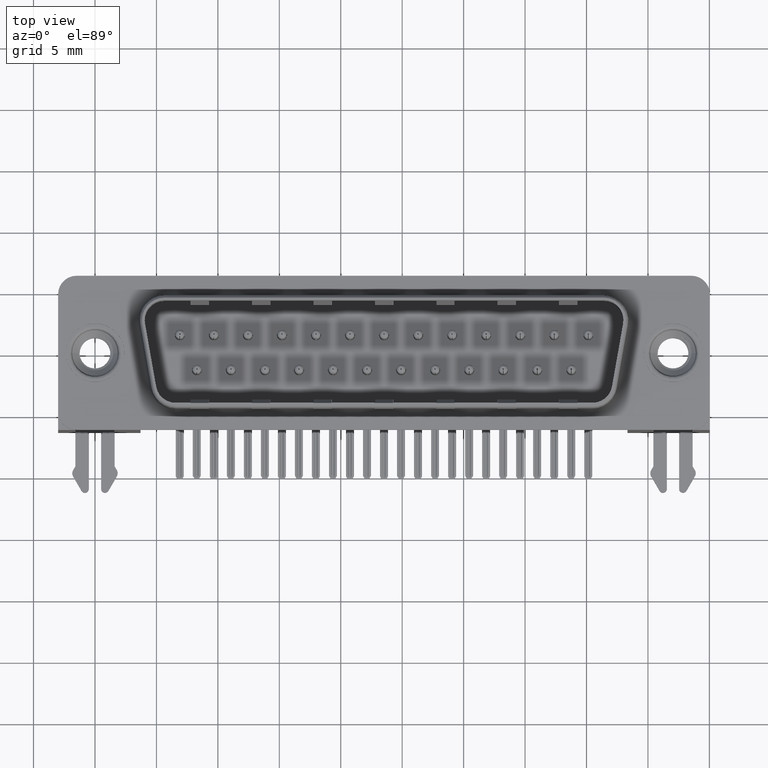
[diagram: clean part render]
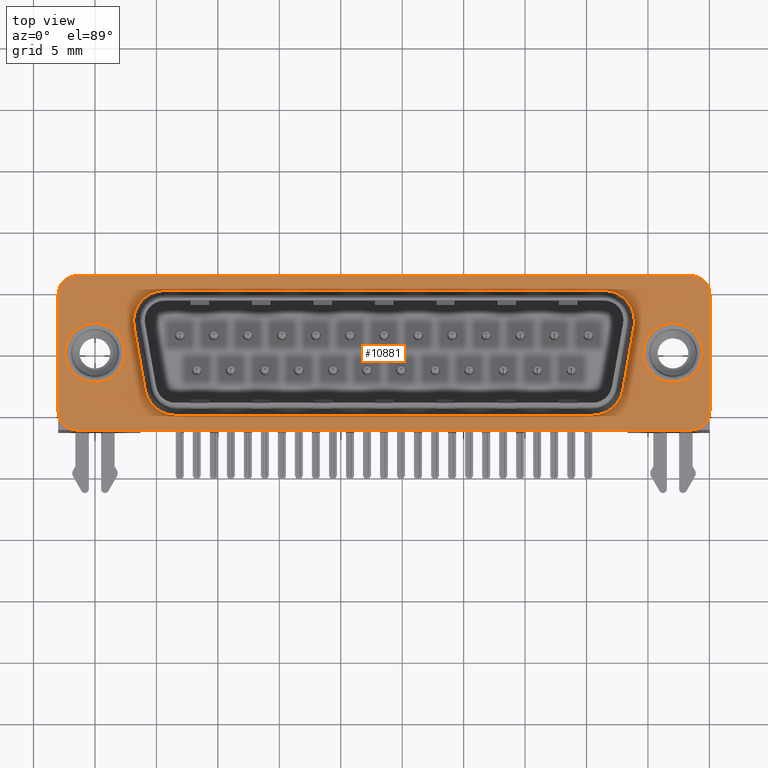
[diagram: same view with one face highlighted and labeled with its STEP entity id]
A machine part, top view. The second image highlights one B-rep face of the part: STEP entity #10881.
In plain terms, the highlighted planar face has unit normal (0, 0, 1).
Its self-contained STEP definition (entity closure, byte-faithful):
#30 = ORIENTED_EDGE ( 'NONE', *, *, #9843, .T. ) ;
#36 = CARTESIAN_POINT ( 'NONE',  ( 44.45268383362472520, 5.495704118817824835, 0.4000000000000000222 ) ) ;
#84 = VECTOR ( 'NONE', #1257, 1000.000000000000000 ) ;
#253 = VERTEX_POINT ( 'NONE', #19395 ) ;
#293 = DIRECTION ( 'NONE',  ( 1.000000000000000000, 0.0000000000000000000, 0.0000000000000000000 ) ) ;
#340 = CARTESIAN_POINT ( 'NONE',  ( 40.49015277954435277, -2.580000000000004068, 0.3999999999999999667 ) ) ;
#661 = DIRECTION ( 'NONE',  ( 1.000000000000000000, 0.0000000000000000000, 0.0000000000000000000 ) ) ;
#818 = EDGE_LOOP ( 'NONE', ( #8031, #19471, #10788, #7961, #18023, #30, #16014, #6404 ) ) ;
#829 = DIRECTION ( 'NONE',  ( 1.000000000000000000, 0.0000000000000000000, 0.0000000000000000000 ) ) ;
#972 = EDGE_CURVE ( 'NONE', #17872, #11512, #15493, .T. ) ;
#1028 = EDGE_CURVE ( 'NONE', #17615, #20172, #6165, .T. ) ;
#1183 = DIRECTION ( 'NONE',  ( 1.000000000000000000, 0.0000000000000000000, 0.0000000000000000000 ) ) ;
#1257 = DIRECTION ( 'NONE',  ( -1.000000000000000000, -0.0000000000000000000, -0.0000000000000000000 ) ) ;
#1364 = VERTEX_POINT ( 'NONE', #4921 ) ;
#1417 = PLANE ( 'NONE',  #12864 ) ;
#1722 = ORIENTED_EDGE ( 'NONE', *, *, #4053, .T. ) ;
#1728 = CARTESIAN_POINT ( 'NONE',  ( 48.53999999999999915, -6.274999999999999467, 0.4000000000000000222 ) ) ;
#2012 = LINE ( 'NONE', #36, #12441 ) ;
#2176 = CIRCLE ( 'NONE', #17371, 2.500000000000002220 ) ;
#2252 = DIRECTION ( 'NONE',  ( -0.0000000000000000000, -0.0000000000000000000, -1.000000000000000000 ) ) ;
#2313 = DIRECTION ( 'NONE',  ( 1.000000000000000000, 0.0000000000000000000, 0.0000000000000000000 ) ) ;
#2521 = CARTESIAN_POINT ( 'NONE',  ( -1.500000000000001332, 4.774999999999995026, 0.4000000000000000222 ) ) ;
#2711 = AXIS2_PLACEMENT_3D ( 'NONE', #20195, #13372, #829 ) ;
#2852 = VECTOR ( 'NONE', #17148, 1000.000000000000000 ) ;
#3000 = CIRCLE ( 'NONE', #3749, 2.500000000000002220 ) ;
#3167 = ORIENTED_EDGE ( 'NONE', *, *, #22954, .T. ) ;
#3269 = CARTESIAN_POINT ( 'NONE',  ( -1.500000000000001332, -4.775000000000003908, 0.4000000000000000222 ) ) ;
#3273 = FACE_BOUND ( 'NONE', #5477, .T. ) ;
#3345 = CARTESIAN_POINT ( 'NONE',  ( 43.89999999999999858, 2.579999999999994742, 0.3999999999999998557 ) ) ;
#3423 = ORIENTED_EDGE ( 'NONE', *, *, #17185, .T. ) ;
#3749 = AXIS2_PLACEMENT_3D ( 'NONE', #5705, #21351, #12436 ) ;
#3852 = LINE ( 'NONE', #7224, #10678 ) ;
#4053 = EDGE_CURVE ( 'NONE', #19351, #20110, #22564, .T. ) ;
#4349 = EDGE_CURVE ( 'NONE', #11512, #12050, #8664, .T. ) ;
#4410 = CARTESIAN_POINT ( 'NONE',  ( 50.03999999999999915, -4.774999999999997691, 0.4000000000000000222 ) ) ;
#4687 = EDGE_LOOP ( 'NONE', ( #18500, #7042 ) ) ;
#4773 = AXIS2_PLACEMENT_3D ( 'NONE', #18142, #2252, #1183 ) ;
#4847 = VERTEX_POINT ( 'NONE', #9045 ) ;
#4921 = CARTESIAN_POINT ( 'NONE',  ( 48.53999999999999915, 6.275000000000003020, 0.4000000000000000222 ) ) ;
#5109 = DIRECTION ( 'NONE',  ( -0.0000000000000000000, -0.0000000000000000000, -1.000000000000000000 ) ) ;
#5417 = DIRECTION ( 'NONE',  ( 0.0000000000000000000, 0.0000000000000000000, 1.000000000000000000 ) ) ;
#5477 = EDGE_LOOP ( 'NONE', ( #7247, #3423, #3167, #11662, #11054, #15929, #17329, #11079, #1722 ) ) ;
#5567 = CARTESIAN_POINT ( 'NONE',  ( 48.53999999999999915, 4.775000000000001243, 0.4000000000000000222 ) ) ;
#5705 = CARTESIAN_POINT ( 'NONE',  ( 41.39999999999999858, 2.579999999999994742, 0.3999999999999999667 ) ) ;
#5786 = CIRCLE ( 'NONE', #8740, 1.500000000000001332 ) ;
#5898 = CIRCLE ( 'NONE', #22941, 2.500000000000000444 ) ;
#6007 = EDGE_CURVE ( 'NONE', #20235, #16858, #10638, .T. ) ;
#6165 = CIRCLE ( 'NONE', #22487, 2.399999999999999467 ) ;
#6207 = CIRCLE ( 'NONE', #6952, 1.499999999999999112 ) ;
#6386 = DIRECTION ( 'NONE',  ( 0.0000000000000000000, 0.0000000000000000000, 1.000000000000000000 ) ) ;
#6404 = ORIENTED_EDGE ( 'NONE', *, *, #9909, .T. ) ;
#6652 = FACE_BOUND ( 'NONE', #20484, .T. ) ;
#6672 = CARTESIAN_POINT ( 'NONE',  ( -3.000000000000000000, -4.775000000000003908, 0.4000000000000000222 ) ) ;
#6769 = DIRECTION ( 'NONE',  ( 1.000000000000000000, 0.0000000000000000000, -0.0000000000000000000 ) ) ;
#6880 = DIRECTION ( 'NONE',  ( 0.0000000000000000000, 0.0000000000000000000, 1.000000000000000000 ) ) ;
#6952 = AXIS2_PLACEMENT_3D ( 'NONE', #2521, #12765, #661 ) ;
#7042 = ORIENTED_EDGE ( 'NONE', *, *, #16346, .F. ) ;
#7064 = CIRCLE ( 'NONE', #7495, 2.400000000000000355 ) ;
#7129 = DIRECTION ( 'NONE',  ( -0.1736481776669240862, -0.9848077530122092416, 0.0000000000000000000 ) ) ;
#7224 = CARTESIAN_POINT ( 'NONE',  ( 4.096206794311725297, -3.061639867190067754, 0.4000000000000000222 ) ) ;
#7247 = ORIENTED_EDGE ( 'NONE', *, *, #10497, .T. ) ;
#7250 = LINE ( 'NONE', #15721, #14695 ) ;
#7317 = EDGE_CURVE ( 'NONE', #9326, #20235, #2012, .T. ) ;
#7323 = VECTOR ( 'NONE', #12033, 1000.000000000000000 ) ;
#7433 = DIRECTION ( 'NONE',  ( -0.0000000000000000000, -0.0000000000000000000, -1.000000000000000000 ) ) ;
#7495 = AXIS2_PLACEMENT_3D ( 'NONE', #9113, #5417, #293 ) ;
#7569 = VERTEX_POINT ( 'NONE', #20777 ) ;
#7961 = ORIENTED_EDGE ( 'NONE', *, *, #972, .T. ) ;
#8031 = ORIENTED_EDGE ( 'NONE', *, *, #8143, .T. ) ;
#8077 = AXIS2_PLACEMENT_3D ( 'NONE', #15341, #6880, #13599 ) ;
#8143 = EDGE_CURVE ( 'NONE', #12827, #1364, #5786, .T. ) ;
#8245 = DIRECTION ( 'NONE',  ( 1.000000000000000000, 0.0000000000000000000, 0.0000000000000000000 ) ) ;
#8352 = CARTESIAN_POINT ( 'NONE',  ( -1.500000000000001554, 6.274999999999994138, 0.4000000000000000222 ) ) ;
#8664 = CIRCLE ( 'NONE', #19757, 1.499999999999998668 ) ;
#8740 = AXIS2_PLACEMENT_3D ( 'NONE', #5567, #17399, #17619 ) ;
#9045 = CARTESIAN_POINT ( 'NONE',  ( 6.549847220455644603, -5.080000000000004512, 0.4000000000000000222 ) ) ;
#9113 = CARTESIAN_POINT ( 'NONE',  ( 0.0000000000000000000, 0.0000000000000000000, 0.4000000000000000222 ) ) ;
#9289 = CARTESIAN_POINT ( 'NONE',  ( -2.999999999999999112, 4.774999999999995026, 0.4000000000000000222 ) ) ;
#9326 = VERTEX_POINT ( 'NONE', #22046 ) ;
#9434 = VERTEX_POINT ( 'NONE', #8352 ) ;
#9467 = EDGE_CURVE ( 'NONE', #21437, #22584, #16568, .T. ) ;
#9493 = CARTESIAN_POINT ( 'NONE',  ( 41.39999999999999858, 2.579999999999994742, 0.3999999999999999667 ) ) ;
#9657 = CARTESIAN_POINT ( 'NONE',  ( 40.49015277954435277, -5.080000000000002736, 0.4000000000000000222 ) ) ;
#9666 = EDGE_CURVE ( 'NONE', #9434, #17872, #6207, .T. ) ;
#9843 = EDGE_CURVE ( 'NONE', #12050, #21437, #13315, .T. ) ;
#9909 = EDGE_CURVE ( 'NONE', #22584, #12827, #18985, .T. ) ;
#9964 = EDGE_CURVE ( 'NONE', #1364, #9434, #14126, .T. ) ;
#10082 = LINE ( 'NONE', #17164, #84 ) ;
#10114 = CARTESIAN_POINT ( 'NONE',  ( 42.95217216207488065, -3.014120444167313284, 0.4000000000000000222 ) ) ;
#10354 = FACE_OUTER_BOUND ( 'NONE', #818, .T. ) ;
#10497 = EDGE_CURVE ( 'NONE', #20110, #13200, #7250, .T. ) ;
#10607 = VECTOR ( 'NONE', #17129, 1000.000000000000000 ) ;
#10623 = DIRECTION ( 'NONE',  ( 1.000000000000000000, 0.0000000000000000000, 0.0000000000000000000 ) ) ;
#10638 = CIRCLE ( 'NONE', #16613, 2.500000000000002220 ) ;
#10678 = VECTOR ( 'NONE', #21493, 1000.000000000000000 ) ;
#10761 = DIRECTION ( 'NONE',  ( -1.000000000000000000, -1.386669445225265552E-16, 0.0000000000000000000 ) ) ;
#10788 = ORIENTED_EDGE ( 'NONE', *, *, #9666, .T. ) ;
#10881 = ADVANCED_FACE ( 'NONE', ( #15916, #6652, #3273, #10354 ), #1417, .T. ) ;
#11054 = ORIENTED_EDGE ( 'NONE', *, *, #6007, .T. ) ;
#11079 = ORIENTED_EDGE ( 'NONE', *, *, #11769, .T. ) ;
#11512 = VERTEX_POINT ( 'NONE', #6672 ) ;
#11599 = EDGE_CURVE ( 'NONE', #253, #15959, #15108, .T. ) ;
#11662 = ORIENTED_EDGE ( 'NONE', *, *, #7317, .T. ) ;
#11769 = EDGE_CURVE ( 'NONE', #7569, #19351, #3852, .T. ) ;
#11971 = CIRCLE ( 'NONE', #2711, 2.399999999999999467 ) ;
#12033 = DIRECTION ( 'NONE',  ( 0.0000000000000000000, 1.000000000000000000, 0.0000000000000000000 ) ) ;
#12050 = VERTEX_POINT ( 'NONE', #12065 ) ;
#12065 = CARTESIAN_POINT ( 'NONE',  ( -1.500000000000001110, -6.275000000000003908, 0.4000000000000000222 ) ) ;
#12436 = DIRECTION ( 'NONE',  ( 1.000000000000000000, 0.0000000000000000000, 0.0000000000000000000 ) ) ;
#12441 = VECTOR ( 'NONE', #7129, 999.9999999999998863 ) ;
#12765 = DIRECTION ( 'NONE',  ( 0.0000000000000000000, 0.0000000000000000000, 1.000000000000000000 ) ) ;
#12827 = VERTEX_POINT ( 'NONE', #14689 ) ;
#12864 = AXIS2_PLACEMENT_3D ( 'NONE', #15581, #22666, #6769 ) ;
#13079 = ORIENTED_EDGE ( 'NONE', *, *, #18855, .F. ) ;
#13200 = VERTEX_POINT ( 'NONE', #19456 ) ;
#13204 = DIRECTION ( 'NONE',  ( -0.0000000000000000000, -0.0000000000000000000, -1.000000000000000000 ) ) ;
#13315 = LINE ( 'NONE', #20495, #2852 ) ;
#13372 = DIRECTION ( 'NONE',  ( 0.0000000000000000000, 0.0000000000000000000, 1.000000000000000000 ) ) ;
#13422 = CARTESIAN_POINT ( 'NONE',  ( -2.400000000000000355, 2.939152317953647599E-16, 0.4000000000000000222 ) ) ;
#13427 = CARTESIAN_POINT ( 'NONE',  ( 3.177980617469481128, 2.145879555832685970, 0.4000000000000000222 ) ) ;
#13484 = CARTESIAN_POINT ( 'NONE',  ( 49.43999999999999773, 8.641107814783724423E-15, 0.4000000000000000222 ) ) ;
#13599 = DIRECTION ( 'NONE',  ( 1.000000000000000000, 0.0000000000000000000, 0.0000000000000000000 ) ) ;
#13873 = CARTESIAN_POINT ( 'NONE',  ( -2.999999999999999112, -4.775000000000003908, 0.4000000000000000222 ) ) ;
#14105 = CARTESIAN_POINT ( 'NONE',  ( 47.03999999999999915, 8.641107814783724423E-15, 0.4000000000000000222 ) ) ;
#14126 = LINE ( 'NONE', #14346, #21415 ) ;
#14179 = DIRECTION ( 'NONE',  ( 0.0000000000000000000, 0.0000000000000000000, 1.000000000000000000 ) ) ;
#14346 = CARTESIAN_POINT ( 'NONE',  ( 48.53999999999999915, 6.275000000000003020, 0.4000000000000000222 ) ) ;
#14548 = CARTESIAN_POINT ( 'NONE',  ( 5.640000000000003233, 5.079999999999993854, 0.4000000000000000222 ) ) ;
#14689 = CARTESIAN_POINT ( 'NONE',  ( 50.03999999999999915, 4.775000000000001243, 0.4000000000000000222 ) ) ;
#14695 = VECTOR ( 'NONE', #17683, 1000.000000000000000 ) ;
#15108 = CIRCLE ( 'NONE', #8077, 2.400000000000000355 ) ;
#15341 = CARTESIAN_POINT ( 'NONE',  ( 0.0000000000000000000, 0.0000000000000000000, 0.4000000000000000222 ) ) ;
#15493 = LINE ( 'NONE', #13873, #10607 ) ;
#15581 = CARTESIAN_POINT ( 'NONE',  ( 48.53999999999999915, 4.775000000000001243, 0.4000000000000000222 ) ) ;
#15721 = CARTESIAN_POINT ( 'NONE',  ( 48.53999999999999915, 5.079999999999993854, 0.4000000000000000222 ) ) ;
#15765 = DIRECTION ( 'NONE',  ( 1.000000000000000000, 0.0000000000000000000, 0.0000000000000000000 ) ) ;
#15916 = FACE_BOUND ( 'NONE', #4687, .T. ) ;
#15929 = ORIENTED_EDGE ( 'NONE', *, *, #18132, .T. ) ;
#15959 = VERTEX_POINT ( 'NONE', #13422 ) ;
#16014 = ORIENTED_EDGE ( 'NONE', *, *, #9467, .T. ) ;
#16346 = EDGE_CURVE ( 'NONE', #15959, #253, #7064, .T. ) ;
#16568 = CIRCLE ( 'NONE', #18412, 1.500000000000001332 ) ;
#16613 = AXIS2_PLACEMENT_3D ( 'NONE', #340, #7433, #2313 ) ;
#16858 = VERTEX_POINT ( 'NONE', #9657 ) ;
#17129 = DIRECTION ( 'NONE',  ( -0.0000000000000000000, -1.000000000000000000, -0.0000000000000000000 ) ) ;
#17148 = DIRECTION ( 'NONE',  ( 1.000000000000000000, 1.040002083918949164E-16, -0.0000000000000000000 ) ) ;
#17164 = CARTESIAN_POINT ( 'NONE',  ( 48.53999999999999915, -5.080000000000002736, 0.4000000000000000222 ) ) ;
#17185 = EDGE_CURVE ( 'NONE', #13200, #18038, #3000, .T. ) ;
#17194 = CARTESIAN_POINT ( 'NONE',  ( 44.64000000000000057, 8.935023046579088148E-15, 0.4000000000000000222 ) ) ;
#17329 = ORIENTED_EDGE ( 'NONE', *, *, #22868, .T. ) ;
#17371 = AXIS2_PLACEMENT_3D ( 'NONE', #9493, #13204, #20143 ) ;
#17399 = DIRECTION ( 'NONE',  ( 0.0000000000000000000, 0.0000000000000000000, 1.000000000000000000 ) ) ;
#17615 = VERTEX_POINT ( 'NONE', #17194 ) ;
#17619 = DIRECTION ( 'NONE',  ( 1.000000000000000000, 0.0000000000000000000, 0.0000000000000000000 ) ) ;
#17683 = DIRECTION ( 'NONE',  ( 1.000000000000000000, -0.0000000000000000000, -0.0000000000000000000 ) ) ;
#17872 = VERTEX_POINT ( 'NONE', #9289 ) ;
#18023 = ORIENTED_EDGE ( 'NONE', *, *, #4349, .T. ) ;
#18038 = VERTEX_POINT ( 'NONE', #3345 ) ;
#18132 = EDGE_CURVE ( 'NONE', #16858, #4847, #10082, .T. ) ;
#18142 = CARTESIAN_POINT ( 'NONE',  ( 5.640000000000003233, 2.579999999999994742, 0.3999999999999999667 ) ) ;
#18412 = AXIS2_PLACEMENT_3D ( 'NONE', #22278, #6386, #8245 ) ;
#18500 = ORIENTED_EDGE ( 'NONE', *, *, #11599, .F. ) ;
#18745 = CARTESIAN_POINT ( 'NONE',  ( 50.03999999999999915, -4.774999999999997691, 0.4000000000000000222 ) ) ;
#18855 = EDGE_CURVE ( 'NONE', #20172, #17615, #11971, .T. ) ;
#18985 = LINE ( 'NONE', #18745, #7323 ) ;
#19351 = VERTEX_POINT ( 'NONE', #13427 ) ;
#19395 = CARTESIAN_POINT ( 'NONE',  ( 2.400000000000000355, 0.0000000000000000000, 0.4000000000000000222 ) ) ;
#19456 = CARTESIAN_POINT ( 'NONE',  ( 41.39999999999999858, 5.079999999999993854, 0.4000000000000000222 ) ) ;
#19471 = ORIENTED_EDGE ( 'NONE', *, *, #9964, .T. ) ;
#19500 = DIRECTION ( 'NONE',  ( -1.000000000000000000, 0.0000000000000000000, 0.0000000000000000000 ) ) ;
#19543 = DIRECTION ( 'NONE',  ( 0.0000000000000000000, 0.0000000000000000000, 1.000000000000000000 ) ) ;
#19757 = AXIS2_PLACEMENT_3D ( 'NONE', #3269, #14179, #19500 ) ;
#20110 = VERTEX_POINT ( 'NONE', #14548 ) ;
#20143 = DIRECTION ( 'NONE',  ( 1.000000000000000000, 0.0000000000000000000, 0.0000000000000000000 ) ) ;
#20172 = VERTEX_POINT ( 'NONE', #13484 ) ;
#20195 = CARTESIAN_POINT ( 'NONE',  ( 47.03999999999999915, 8.641107814783724423E-15, 0.4000000000000000222 ) ) ;
#20235 = VERTEX_POINT ( 'NONE', #10114 ) ;
#20484 = EDGE_LOOP ( 'NONE', ( #13079, #22574 ) ) ;
#20495 = CARTESIAN_POINT ( 'NONE',  ( 48.53999999999999915, -6.274999999999998579, 0.4000000000000000222 ) ) ;
#20777 = CARTESIAN_POINT ( 'NONE',  ( 4.087827837925122054, -3.014120444167312840, 0.4000000000000000222 ) ) ;
#21351 = DIRECTION ( 'NONE',  ( -0.0000000000000000000, -0.0000000000000000000, -1.000000000000000000 ) ) ;
#21415 = VECTOR ( 'NONE', #10761, 1000.000000000000000 ) ;
#21437 = VERTEX_POINT ( 'NONE', #1728 ) ;
#21493 = DIRECTION ( 'NONE',  ( -0.1736481776669231702, 0.9848077530122093526, -0.0000000000000000000 ) ) ;
#22046 = CARTESIAN_POINT ( 'NONE',  ( 43.86201938253052646, 2.145879555832685526, 0.4000000000000000222 ) ) ;
#22278 = CARTESIAN_POINT ( 'NONE',  ( 48.53999999999999915, -4.774999999999997691, 0.4000000000000000222 ) ) ;
#22487 = AXIS2_PLACEMENT_3D ( 'NONE', #14105, #19543, #10623 ) ;
#22564 = CIRCLE ( 'NONE', #4773, 2.499999999999999556 ) ;
#22574 = ORIENTED_EDGE ( 'NONE', *, *, #1028, .F. ) ;
#22584 = VERTEX_POINT ( 'NONE', #4410 ) ;
#22666 = DIRECTION ( 'NONE',  ( 0.0000000000000000000, 0.0000000000000000000, 1.000000000000000000 ) ) ;
#22741 = CARTESIAN_POINT ( 'NONE',  ( 6.549847220455646379, -2.580000000000004068, 0.3999999999999999667 ) ) ;
#22868 = EDGE_CURVE ( 'NONE', #4847, #7569, #5898, .T. ) ;
#22941 = AXIS2_PLACEMENT_3D ( 'NONE', #22741, #5109, #15765 ) ;
#22954 = EDGE_CURVE ( 'NONE', #18038, #9326, #2176, .T. ) ;